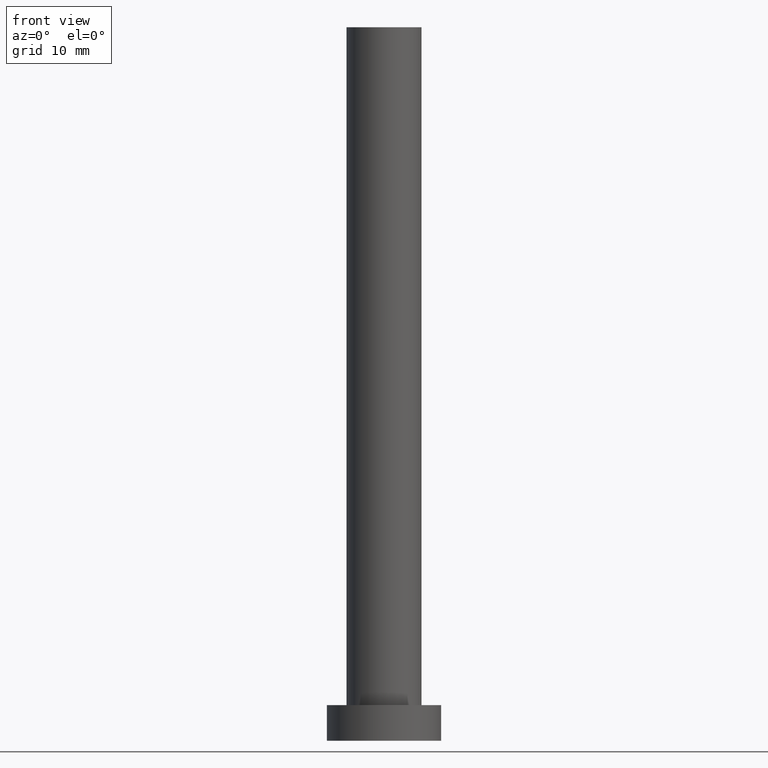
[diagram: clean part render]
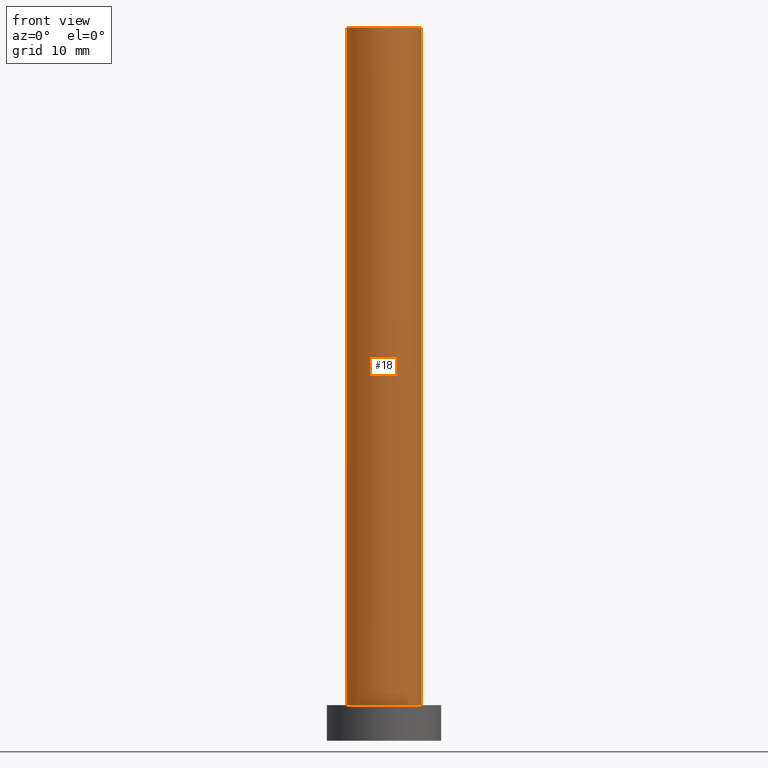
[diagram: same view with one face highlighted and labeled with its STEP entity id]
A machine part, front view. The second image highlights one B-rep face of the part: STEP entity #18.
In plain terms, the highlighted cylindrical surface (partial cylindrical patch) has radius 5.25 mm, axis along (-0, -0, -1).
Its self-contained STEP definition (entity closure, byte-faithful):
#1 = CARTESIAN_POINT ( 'NONE',  ( 5.250000000000000000, 6.429395695523604153E-16, 100.0000000000000000 ) ) ;
#4 = DIRECTION ( 'NONE',  ( 1.000000000000000000, 0.000000000000000000, 0.000000000000000000 ) ) ;
#18 = ADVANCED_FACE ( 'NONE', ( #152 ), #170, .T. ) ;
#31 = DIRECTION ( 'NONE',  ( -0.000000000000000000, -0.000000000000000000, -1.000000000000000000 ) ) ;
#36 = DIRECTION ( 'NONE',  ( -0.000000000000000000, -0.000000000000000000, -1.000000000000000000 ) ) ;
#37 = CARTESIAN_POINT ( 'NONE',  ( 0.000000000000000000, 0.000000000000000000, 100.0000000000000000 ) ) ;
#49 = ORIENTED_EDGE ( 'NONE', *, *, #126, .F. ) ;
#50 = VECTOR ( 'NONE', #31, 1000.000000000000000 ) ;
#51 = AXIS2_PLACEMENT_3D ( 'NONE', #241, #159, #4 ) ;
#55 = CARTESIAN_POINT ( 'NONE',  ( -5.250000000000000000, 0.000000000000000000, 100.0000000000000000 ) ) ;
#65 = VERTEX_POINT ( 'NONE', #55 ) ;
#75 = CARTESIAN_POINT ( 'NONE',  ( 5.250000000000000000, 6.429395695523604153E-16, 5.000000000000000000 ) ) ;
#82 = ORIENTED_EDGE ( 'NONE', *, *, #236, .T. ) ;
#85 = EDGE_LOOP ( 'NONE', ( #246, #49, #165, #82 ) ) ;
#86 = DIRECTION ( 'NONE',  ( 0.000000000000000000, 0.000000000000000000, 1.000000000000000000 ) ) ;
#88 = CIRCLE ( 'NONE', #51, 5.250000000000000000 ) ;
#89 = EDGE_CURVE ( 'NONE', #250, #225, #147, .T. ) ;
#96 = CIRCLE ( 'NONE', #164, 5.250000000000000000 ) ;
#112 = DIRECTION ( 'NONE',  ( 1.000000000000000000, 0.000000000000000000, 0.000000000000000000 ) ) ;
#126 = EDGE_CURVE ( 'NONE', #65, #250, #96, .T. ) ;
#134 = CARTESIAN_POINT ( 'NONE',  ( -5.250000000000000000, 0.000000000000000000, 5.000000000000000000 ) ) ;
#140 = VERTEX_POINT ( 'NONE', #134 ) ;
#145 = EDGE_CURVE ( 'NONE', #65, #140, #254, .T. ) ;
#147 = LINE ( 'NONE', #231, #248 ) ;
#148 = CARTESIAN_POINT ( 'NONE',  ( -5.250000000000000000, 0.000000000000000000, 100.0000000000000000 ) ) ;
#150 = DIRECTION ( 'NONE',  ( -1.000000000000000000, 0.000000000000000000, 0.000000000000000000 ) ) ;
#152 = FACE_OUTER_BOUND ( 'NONE', #85, .T. ) ;
#159 = DIRECTION ( 'NONE',  ( 0.000000000000000000, 0.000000000000000000, 1.000000000000000000 ) ) ;
#164 = AXIS2_PLACEMENT_3D ( 'NONE', #171, #86, #112 ) ;
#165 = ORIENTED_EDGE ( 'NONE', *, *, #145, .T. ) ;
#170 = CYLINDRICAL_SURFACE ( 'NONE', #179, 5.250000000000000000 ) ;
#171 = CARTESIAN_POINT ( 'NONE',  ( 0.000000000000000000, 0.000000000000000000, 100.0000000000000000 ) ) ;
#179 = AXIS2_PLACEMENT_3D ( 'NONE', #37, #190, #150 ) ;
#190 = DIRECTION ( 'NONE',  ( -0.000000000000000000, -0.000000000000000000, -1.000000000000000000 ) ) ;
#225 = VERTEX_POINT ( 'NONE', #75 ) ;
#231 = CARTESIAN_POINT ( 'NONE',  ( 5.250000000000000000, 6.429395695523604153E-16, 100.0000000000000000 ) ) ;
#236 = EDGE_CURVE ( 'NONE', #140, #225, #88, .T. ) ;
#241 = CARTESIAN_POINT ( 'NONE',  ( 0.000000000000000000, 0.000000000000000000, 5.000000000000000000 ) ) ;
#246 = ORIENTED_EDGE ( 'NONE', *, *, #89, .F. ) ;
#248 = VECTOR ( 'NONE', #36, 1000.000000000000000 ) ;
#250 = VERTEX_POINT ( 'NONE', #1 ) ;
#254 = LINE ( 'NONE', #148, #50 ) ;